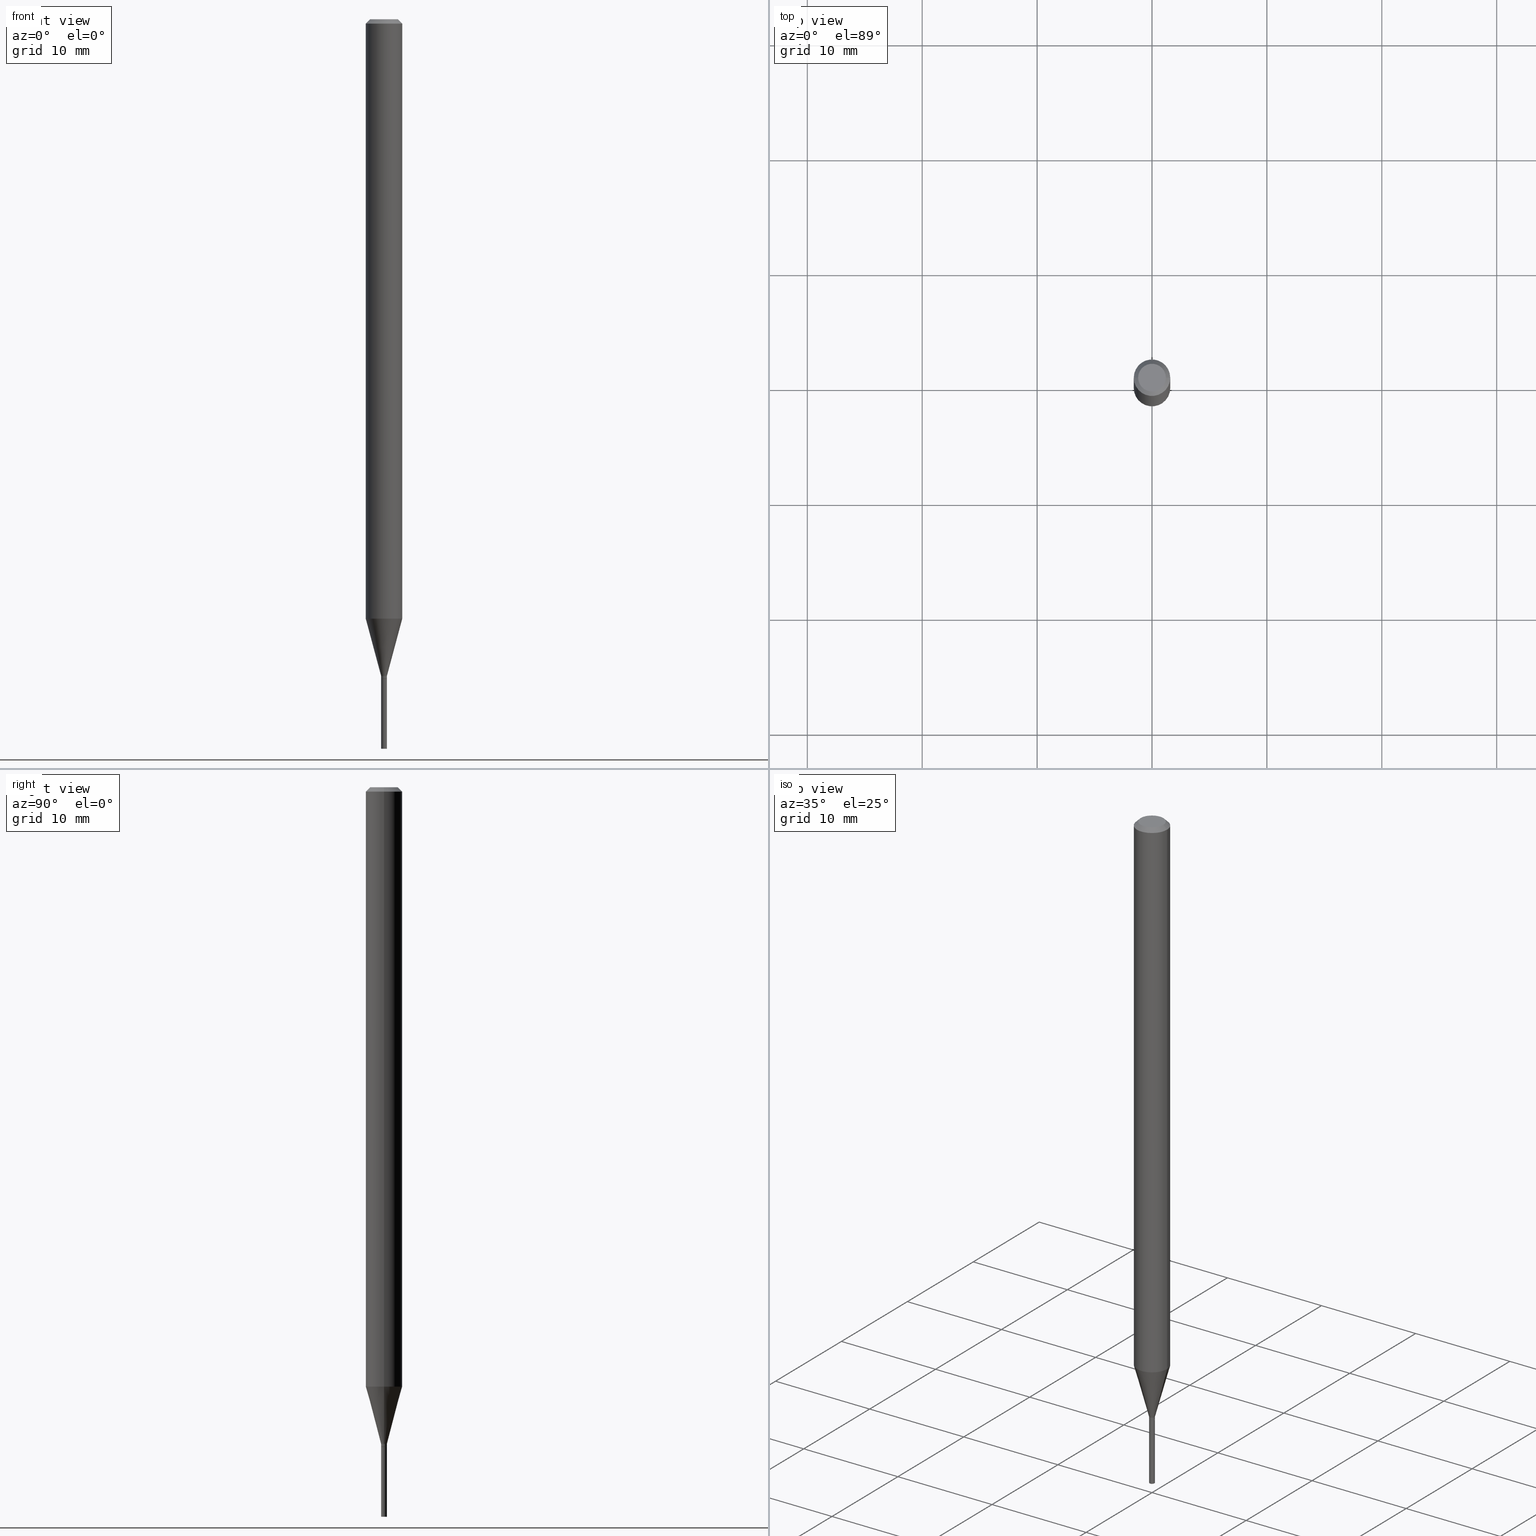
[diagram: canonical four-view strip — front | top / right | iso, engineering-drawing reading convention]
A machine part, canonical four-view strip (front | top / right | iso — engineering-drawing reading convention). The complete STEP part file that produces these views, byte-faithful:
ISO-10303-21;
HEADER;
FILE_DESCRIPTION (( 'STEP AP203' ),
    '1' );
FILE_NAME ('00640.STEP',
    '2024-03-19T22:14:25',
    ( '' ),
    ( '' ),
    'SwSTEP 2.0',
    'SolidWorks 2023',
    '' );
FILE_SCHEMA (( 'CONFIG_CONTROL_DESIGN' ));
ENDSEC;

DATA;
#1 = ORIENTED_EDGE ( 'NONE', *, *, #416, .F. ) ;
#2 = APPLICATION_CONTEXT ( 'configuration controlled 3d designs of mechanical parts and assemblies' ) ;
#3 = AXIS2_PLACEMENT_3D ( 'NONE', #405, #116, #7 ) ;
#4 = FACE_OUTER_BOUND ( 'NONE', #39, .T. ) ;
#5 = EDGE_CURVE ( 'NONE', #34, #466, #188, .T. ) ;
#6 = ORIENTED_EDGE ( 'NONE', *, *, #112, .T. ) ;
#7 = DIRECTION ( 'NONE',  ( 1.000000000000000000, 0.000000000000000000, 0.000000000000000000 ) ) ;
#8 = EDGE_LOOP ( 'NONE', ( #152, #95, #269, #148 ) ) ;
#9 = CALENDAR_DATE ( 2024, 19, 3 ) ;
#10 = CARTESIAN_POINT ( 'NONE',  ( 5.023157587683648864E-29, -7.171737760509410545E-15, -2.054067332602632856 ) ) ;
#11 = EDGE_CURVE ( 'NONE', #204, #113, #47, .T. ) ;
#12 = VECTOR ( 'NONE', #259, 39.37007874015748143 ) ;
#13 = CIRCLE ( 'NONE', #375, 0.04749999999999999362 ) ;
#14 = DATE_AND_TIME ( #194, #196 ) ;
#15 = CARTESIAN_POINT ( 'NONE',  ( -0.01000000000000000021, -8.238671312870676649E-15, -2.500000000000000000 ) ) ;
#16 = APPROVAL ( #82, 'UNSPECIFIED' ) ;
#17 = CARTESIAN_POINT ( 'NONE',  ( 0.009999999999999649794, -7.925662639173938591E-15, -2.250000000000000000 ) ) ;
#18 = CARTESIAN_POINT ( 'NONE',  ( -0.009999999999999649794, -7.256213644740208937E-15, -2.250000000000000000 ) ) ;
#19 = CIRCLE ( 'NONE', #283, 0.009999999999999649794 ) ;
#20 = DIRECTION ( 'NONE',  ( -2.445468806185136597E-29, 3.491481338843145583E-15, 1.000000000000000000 ) ) ;
#21 = EDGE_CURVE ( 'NONE', #277, #402, #164, .T. ) ;
#22 = DIRECTION ( 'NONE',  ( 1.000000000000000000, -6.982962677686285643E-15, 0.000000000000000000 ) ) ;
#23 = CYLINDRICAL_SURFACE ( 'NONE', #306, 0.01000000000000000021 ) ;
#24 = ORIENTED_EDGE ( 'NONE', *, *, #431, .F. ) ;
#25 = AXIS2_PLACEMENT_3D ( 'NONE', #257, #223, #382 ) ;
#26 = SECURITY_CLASSIFICATION ( '', '', #80 ) ;
#27 = CARTESIAN_POINT ( 'NONE',  ( 0.000000000000000000, 0.000000000000000000, 0.000000000000000000 ) ) ;
#28 = EDGE_LOOP ( 'NONE', ( #321, #249, #150, #65 ) ) ;
#29 = EDGE_CURVE ( 'NONE', #59, #277, #89, .T. ) ;
#30 = DIRECTION ( 'NONE',  ( -2.445468806185136877E-29, 3.491481338843145188E-15, 1.000000000000000000 ) ) ;
#31 = CARTESIAN_POINT ( 'NONE',  ( 5.502304813916557343E-29, -7.855833012397078448E-15, -2.250000000000000000 ) ) ;
#32 = VECTOR ( 'NONE', #124, 39.37007874015748143 ) ;
#33 = EDGE_CURVE ( 'NONE', #113, #68, #265, .T. ) ;
#34 = VERTEX_POINT ( 'NONE', #18 ) ;
#35 = DIRECTION ( 'NONE',  ( -2.445468806185136597E-29, 3.491481338843145583E-15, 1.000000000000000000 ) ) ;
#36 = ORIENTED_EDGE ( 'NONE', *, *, #298, .F. ) ;
#37 = ORIENTED_EDGE ( 'NONE', *, *, #274, .F. ) ;
#38 = DIRECTION ( 'NONE',  ( 1.000000000000000000, -6.982962677686285643E-15, 0.000000000000000000 ) ) ;
#39 = EDGE_LOOP ( 'NONE', ( #391, #314, #342, #36 ) ) ;
#40 = AXIS2_PLACEMENT_3D ( 'NONE', #385, #300, #312 ) ;
#41 = VECTOR ( 'NONE', #286, 39.37007874015748143 ) ;
#42 = PERSON_AND_ORGANIZATION_ROLE ( 'classification_officer' ) ;
#43 = VERTEX_POINT ( 'NONE', #200 ) ;
#44 = PERSON_AND_ORGANIZATION_ROLE ( 'creator' ) ;
#45 = FACE_OUTER_BOUND ( 'NONE', #302, .T. ) ;
#46 = PERSON_AND_ORGANIZATION_ROLE ( 'design_supplier' ) ;
#47 = LINE ( 'NONE', #201, #363 ) ;
#48 = EDGE_CURVE ( 'NONE', #43, #204, #445, .T. ) ;
#49 = VECTOR ( 'NONE', #30, 39.37007874015748143 ) ;
#50 = DIRECTION ( 'NONE',  ( -2.445468806185136597E-29, 3.491481338843145583E-15, 1.000000000000000000 ) ) ;
#51 = DIRECTION ( 'NONE',  ( -2.438088387897960049E-29, 3.491481338843145188E-15, 1.000000000000000000 ) ) ;
#52 = EDGE_CURVE ( 'NONE', #305, #132, #109, .T. ) ;
#53 = MANIFOLD_SOLID_BREP ( 'Body-Move/Copy2[1]', #235 ) ;
#54 = CARTESIAN_POINT ( 'NONE',  ( -0.01000000000000000021, -8.238671312870676649E-15, -2.260000000000000231 ) ) ;
#55 = CIRCLE ( 'NONE', #118, 0.06250000000000000000 ) ;
#56 = CONICAL_SURFACE ( 'NONE', #299, 0.009999999999999649794, 0.2617993877991497964 ) ;
#57 = CARTESIAN_POINT ( 'NONE',  ( 5.525536767575317208E-29, -7.889002085116087805E-15, -2.259500000000000508 ) ) ;
#58 = DIRECTION ( 'NONE',  ( 1.000000000000000000, -6.982962677686281699E-15, 0.000000000000000000 ) ) ;
#59 = VERTEX_POINT ( 'NONE', #157 ) ;
#60 = FACE_OUTER_BOUND ( 'NONE', #221, .T. ) ;
#61 = ORIENTED_EDGE ( 'NONE', *, *, #11, .F. ) ;
#62 = CC_DESIGN_APPROVAL ( #16, ( #387 ) ) ;
#63 = CARTESIAN_POINT ( 'NONE',  ( 6.982962677691792681E-17, 0.009999999999992108951, -2.260000000000000231 ) ) ;
#64 = FACE_OUTER_BOUND ( 'NONE', #240, .T. ) ;
#65 = ORIENTED_EDGE ( 'NONE', *, *, #33, .F. ) ;
#66 = EDGE_CURVE ( 'NONE', #393, #305, #337, .T. ) ;
#67 = DATE_AND_TIME ( #100, #250 ) ;
#68 = VERTEX_POINT ( 'NONE', #413 ) ;
#69 = AXIS2_PLACEMENT_3D ( 'NONE', #295, #193, #332 ) ;
#70 = ORIENTED_EDGE ( 'NONE', *, *, #440, .F. ) ;
#71 = CIRCLE ( 'NONE', #165, 0.04749999999999999362 ) ;
#72 =( NAMED_UNIT ( * ) PLANE_ANGLE_UNIT ( ) SI_UNIT ( $, .RADIAN. ) );
#73 = ORIENTED_EDGE ( 'NONE', *, *, #226, .F. ) ;
#74 = EDGE_CURVE ( 'NONE', #132, #305, #291, .T. ) ;
#75 = DIRECTION ( 'NONE',  ( -2.445468806185136597E-29, 3.491481338843145583E-15, 1.000000000000000000 ) ) ;
#76 = VERTEX_POINT ( 'NONE', #15 ) ;
#77 = DIRECTION ( 'NONE',  ( 1.000000000000000000, -6.982962677686267499E-15, 4.852736867747366768E-29 ) ) ;
#78 = ORIENTED_EDGE ( 'NONE', *, *, #66, .F. ) ;
#79 = ADVANCED_BREP_SHAPE_REPRESENTATION ( '00640', ( #53, #352, #3 ), #179 ) ;
#80 = SECURITY_CLASSIFICATION_LEVEL ( 'unclassified' ) ;
#81 = CARTESIAN_POINT ( 'NONE',  ( 6.198122052593289668E-29, -8.607766087339451973E-15, -2.500000000000000000 ) ) ;
#82 = APPROVAL_STATUS ( 'not_yet_approved' ) ;
#83 = ADVANCED_FACE ( 'NONE', ( #369 ), #128, .F. ) ;
#84 = CARTESIAN_POINT ( 'NONE',  ( 3.668203209277705088E-31, -5.237222008264718399E-17, -0.01499999999999999944 ) ) ;
#85 = COORDINATED_UNIVERSAL_TIME_OFFSET ( 5, 0, .BEHIND. ) ;
#86 = CARTESIAN_POINT ( 'NONE',  ( 5.526759501978408888E-29, -7.890747825785510097E-15, -2.260000000000000231 ) ) ;
#87 = AXIS2_PLACEMENT_3D ( 'NONE', #27, #340, #453 ) ;
#88 = CONICAL_SURFACE ( 'NONE', #456, 0.009499999999999999764, 0.7853981633974728149 ) ;
#89 = LINE ( 'NONE', #195, #317 ) ;
#90 = PLANE ( 'NONE',  #403 ) ;
#91 = CARTESIAN_POINT ( 'NONE',  ( -0.06250000000000000000, -3.167965780445966393E-15, -0.01499999999999999944 ) ) ;
#92 = CIRCLE ( 'NONE', #372, 0.01000000000000000021 ) ;
#93 = AXIS2_PLACEMENT_3D ( 'NONE', #167, #203, #344 ) ;
#94 = FACE_OUTER_BOUND ( 'NONE', #245, .T. ) ;
#95 = ORIENTED_EDGE ( 'NONE', *, *, #226, .T. ) ;
#96 = LINE ( 'NONE', #384, #49 ) ;
#97 = ADVANCED_FACE ( 'NONE', ( #297 ), #336, .T. ) ;
#98 = CYLINDRICAL_SURFACE ( 'NONE', #345, 0.009999999999999649794 ) ;
#99 = ORIENTED_EDGE ( 'NONE', *, *, #294, .T. ) ;
#100 = CALENDAR_DATE ( 2024, 19, 3 ) ;
#101 = AXIS2_PLACEMENT_3D ( 'NONE', #399, #327, #426 ) ;
#102 = FACE_OUTER_BOUND ( 'NONE', #276, .T. ) ;
#103 = ADVANCED_FACE ( 'NONE', ( #45 ), #90, .F. ) ;
#104 = LENGTH_MEASURE_WITH_UNIT ( LENGTH_MEASURE( 0.02539999999999999897 ), #211 );
#105 = ORIENTED_EDGE ( 'NONE', *, *, #383, .T. ) ;
#106 = SHAPE_DEFINITION_REPRESENTATION ( #127, #79 ) ;
#107 = VERTEX_POINT ( 'NONE', #262 ) ;
#108 = DIRECTION ( 'NONE',  ( 1.000000000000000000, -6.982962677686262766E-15, 0.000000000000000000 ) ) ;
#109 = CIRCLE ( 'NONE', #227, 0.01000000000000000021 ) ;
#110 = ORIENTED_EDGE ( 'NONE', *, *, #440, .T. ) ;
#111 = DIRECTION ( 'NONE',  ( -2.445468806185136597E-29, 3.491481338843145583E-15, 1.000000000000000000 ) ) ;
#112 = EDGE_CURVE ( 'NONE', #43, #107, #462, .T. ) ;
#113 = VERTEX_POINT ( 'NONE', #17 ) ;
#114 = LINE ( 'NONE', #361, #41 ) ;
#115 = ORIENTED_EDGE ( 'NONE', *, *, #274, .T. ) ;
#116 = DIRECTION ( 'NONE',  ( 0.000000000000000000, 0.000000000000000000, 1.000000000000000000 ) ) ;
#117 = DIRECTION ( 'NONE',  ( -2.438088387897960049E-29, 3.491481338843145188E-15, 1.000000000000000000 ) ) ;
#118 = AXIS2_PLACEMENT_3D ( 'NONE', #10, #448, #231 ) ;
#119 = APPROVAL_PERSON_ORGANIZATION ( #329, #309, #130 ) ;
#120 = CC_DESIGN_PERSON_AND_ORGANIZATION_ASSIGNMENT ( #258, #407, ( #233 ) ) ;
#121 = PERSON_AND_ORGANIZATION_ROLE ( 'design_owner' ) ;
#122 = DIRECTION ( 'NONE',  ( 1.000000000000000000, -6.982962677686265922E-15, 4.876176775795935793E-29 ) ) ;
#123 = DATE_AND_TIME ( #9, #339 ) ;
#124 = DIRECTION ( 'NONE',  ( -2.445468806185136877E-29, 3.491481338843145188E-15, 1.000000000000000000 ) ) ;
#125 = DIRECTION ( 'NONE',  ( 1.000000000000000000, -6.982962677686265922E-15, 4.876176775795935793E-29 ) ) ;
#126 = CIRCLE ( 'NONE', #101, 0.06250000000000000000 ) ;
#127 = PRODUCT_DEFINITION_SHAPE ( 'NONE', 'NONE',  #233 ) ;
#128 = PLANE ( 'NONE',  #141 ) ;
#129 = FACE_OUTER_BOUND ( 'NONE', #360, .T. ) ;
#130 = APPROVAL_ROLE ( '' ) ;
#131 = LINE ( 'NONE', #273, #171 ) ;
#132 = VERTEX_POINT ( 'NONE', #54 ) ;
#133 = AXIS2_PLACEMENT_3D ( 'NONE', #237, #137, #173 ) ;
#134 = EDGE_CURVE ( 'NONE', #68, #402, #338, .T. ) ;
#135 = CONICAL_SURFACE ( 'NONE', #450, 0.009999999999999649794, 0.2617993877991497964 ) ;
#136 = DIRECTION ( 'NONE',  ( 1.000000000000000000, -6.982962677686265922E-15, 4.876176775795935793E-29 ) ) ;
#137 = DIRECTION ( 'NONE',  ( -2.445468806185136597E-29, 3.491481338843145583E-15, 1.000000000000000000 ) ) ;
#138 = CARTESIAN_POINT ( 'NONE',  ( 3.668203209277705088E-31, -5.237222008264718399E-17, -0.01499999999999999944 ) ) ;
#139 = EDGE_CURVE ( 'NONE', #466, #68, #55, .T. ) ;
#140 = EDGE_LOOP ( 'NONE', ( #282, #105, #144, #78 ) ) ;
#141 = AXIS2_PLACEMENT_3D ( 'NONE', #161, #117, #125 ) ;
#142 = AXIS2_PLACEMENT_3D ( 'NONE', #252, #216, #392 ) ;
#143 = DIRECTION ( 'NONE',  ( -2.445468806185136597E-29, 3.491481338843145583E-15, 1.000000000000000000 ) ) ;
#144 = ORIENTED_EDGE ( 'NONE', *, *, #52, .F. ) ;
#145 = FACE_OUTER_BOUND ( 'NONE', #182, .T. ) ;
#146 = VERTEX_POINT ( 'NONE', #406 ) ;
#147 = DIRECTION ( 'NONE',  ( -0.7071067811865647812, 7.493145998870415691E-15, 0.7071067811865301422 ) ) ;
#148 = ORIENTED_EDGE ( 'NONE', *, *, #303, .F. ) ;
#149 = AXIS2_PLACEMENT_3D ( 'NONE', #389, #310, #58 ) ;
#150 = ORIENTED_EDGE ( 'NONE', *, *, #458, .F. ) ;
#151 = CARTESIAN_POINT ( 'NONE',  ( 0.01000000000000000021, -8.798532973884726663E-15, -2.500000000000000000 ) ) ;
#152 = ORIENTED_EDGE ( 'NONE', *, *, #404, .F. ) ;
#153 = COORDINATED_UNIVERSAL_TIME_OFFSET ( 5, 0, .BEHIND. ) ;
#154 = CARTESIAN_POINT ( 'NONE',  ( 6.113672015462842613E-29, -8.728703347107864943E-15, -2.500000000000000000 ) ) ;
#155 = APPROVAL ( #370, 'UNSPECIFIED' ) ;
#156 = PERSON_AND_ORGANIZATION ( #197, #264 ) ;
#157 = CARTESIAN_POINT ( 'NONE',  ( -0.04749999999999999362, 3.578768372314227269E-16, 9.466017379672966683E-16 ) ) ;
#158 = VECTOR ( 'NONE', #439, 39.37007874015748143 ) ;
#159 = LOCAL_TIME ( 18, 14, 25.00000000000000000, #153 ) ;
#160 = PERSON_AND_ORGANIZATION ( #197, #264 ) ;
#161 = CARTESIAN_POINT ( 'NONE',  ( 5.526759501978408888E-29, -7.890747825785508520E-15, -2.259999999999999787 ) ) ;
#162 = PLANE ( 'NONE',  #25 ) ;
#163 = CARTESIAN_POINT ( 'NONE',  ( 5.526759501978408888E-29, -7.890747825785510097E-15, -2.260000000000000231 ) ) ;
#164 = CIRCLE ( 'NONE', #380, 0.06250000000000000000 ) ;
#165 = AXIS2_PLACEMENT_3D ( 'NONE', #254, #111, #401 ) ;
#166 = DIRECTION ( 'NONE',  ( 1.000000000000000000, -6.982962677686235945E-15, 0.000000000000000000 ) ) ;
#167 = CARTESIAN_POINT ( 'NONE',  ( 5.502304813916557343E-29, -7.855833012397078448E-15, -2.250000000000000000 ) ) ;
#168 = CC_DESIGN_DATE_AND_TIME_ASSIGNMENT ( #14, #222, ( #26 ) ) ;
#169 = FACE_OUTER_BOUND ( 'NONE', #140, .T. ) ;
#170 = ORIENTED_EDGE ( 'NONE', *, *, #5, .F. ) ;
#171 = VECTOR ( 'NONE', #234, 39.37007874015748143 ) ;
#172 = EDGE_CURVE ( 'NONE', #76, #393, #92, .T. ) ;
#173 = DIRECTION ( 'NONE',  ( 1.000000000000000000, -6.982962677686266711E-15, 4.876176775795935793E-29 ) ) ;
#174 = ORIENTED_EDGE ( 'NONE', *, *, #66, .T. ) ;
#175 = PRODUCT_RELATED_PRODUCT_CATEGORY ( 'detail', '', ( #412 ) ) ;
#176 = FACE_OUTER_BOUND ( 'NONE', #362, .T. ) ;
#177 = CARTESIAN_POINT ( 'NONE',  ( 5.526759501978408888E-29, -7.890747825785508520E-15, -2.259999999999999787 ) ) ;
#178 = APPROVAL_DATE_TIME ( #67, #309 ) ;
#179 =( GEOMETRIC_REPRESENTATION_CONTEXT ( 3 ) GLOBAL_UNCERTAINTY_ASSIGNED_CONTEXT ( ( #307 ) ) GLOBAL_UNIT_ASSIGNED_CONTEXT ( ( #244, #72, #359 ) ) REPRESENTATION_CONTEXT ( 'NONE', 'WORKASPACE' ) );
#180 = ORIENTED_EDGE ( 'NONE', *, *, #21, .T. ) ;
#181 = CARTESIAN_POINT ( 'NONE',  ( 0.000000000000000000, 0.000000000000000000, 0.000000000000000000 ) ) ;
#182 = EDGE_LOOP ( 'NONE', ( #285, #191, #330, #400 ) ) ;
#183 = ADVANCED_FACE ( 'NONE', ( #378 ), #162, .F. ) ;
#184 = CARTESIAN_POINT ( 'NONE',  ( -2.314885022079666495E-44, 3.305042303429313746E-30, 9.466017379672990348E-16 ) ) ;
#185 = APPROVAL_STATUS ( 'not_yet_approved' ) ;
#186 = ORIENTED_EDGE ( 'NONE', *, *, #190, .F. ) ;
#187 = CARTESIAN_POINT ( 'NONE',  ( -0.009499999999999999764, -7.823246265888298548E-15, -2.259999999999999787 ) ) ;
#188 = LINE ( 'NONE', #328, #158 ) ;
#189 = COORDINATED_UNIVERSAL_TIME_OFFSET ( 5, 0, .BEHIND. ) ;
#190 = EDGE_CURVE ( 'NONE', #393, #76, #355, .T. ) ;
#191 = ORIENTED_EDGE ( 'NONE', *, *, #431, .T. ) ;
#192 = COORDINATED_UNIVERSAL_TIME_OFFSET ( 5, 0, .BEHIND. ) ;
#193 = DIRECTION ( 'NONE',  ( -2.445468806185136597E-29, 3.491481338843145583E-15, 1.000000000000000000 ) ) ;
#194 = CALENDAR_DATE ( 2024, 19, 3 ) ;
#195 = CARTESIAN_POINT ( 'NONE',  ( -0.06250000000000000000, 3.840629472727444916E-16, -0.01499999999999999944 ) ) ;
#196 = LOCAL_TIME ( 18, 14, 25.00000000000000000, #189 ) ;
#197 = PERSON ( 'UNSPECIFIED', 'UNSPECIFIED', 'UNSPECIFIED', ('UNSPECIFIED'), ('UNSPECIFIED'), ('UNSPECIFIED') ) ;
#198 = DIRECTION ( 'NONE',  ( 1.000000000000000000, -6.982962677686266711E-15, 0.000000000000000000 ) ) ;
#199 = ADVANCED_FACE ( 'NONE', ( #176 ), #452, .T. ) ;
#200 = CARTESIAN_POINT ( 'NONE',  ( 0.009499999999999999764, -7.957085971223528811E-15, -2.259999999999999787 ) ) ;
#201 = CARTESIAN_POINT ( 'NONE',  ( 0.009999999999999649794, -6.982962677686021671E-17, 4.876176775795764309E-31 ) ) ;
#202 = CARTESIAN_POINT ( 'NONE',  ( 5.502304813916557343E-29, -7.855833012397078448E-15, -2.250000000000000000 ) ) ;
#203 = DIRECTION ( 'NONE',  ( -2.445468806185136597E-29, 3.491481338843145583E-15, 1.000000000000000000 ) ) ;
#204 = VERTEX_POINT ( 'NONE', #418 ) ;
#205 = DIRECTION ( 'NONE',  ( -1.000000000000000000, 6.982962677686266711E-15, 0.000000000000000000 ) ) ;
#206 = ORIENTED_EDGE ( 'NONE', *, *, #74, .T. ) ;
#207 = CIRCLE ( 'NONE', #93, 0.009999999999999649794 ) ;
#208 = CARTESIAN_POINT ( 'NONE',  ( 0.04749999999999999362, -4.035134999187561860E-16, 9.466017379673015986E-16 ) ) ;
#209 = DIRECTION ( 'NONE',  ( -2.445468806185136597E-29, 3.491481338843145583E-15, 1.000000000000000000 ) ) ;
#210 = VERTEX_POINT ( 'NONE', #208 ) ;
#211 =( LENGTH_UNIT ( ) NAMED_UNIT ( * ) SI_UNIT ( $, .METRE. ) );
#212 = ADVANCED_FACE ( 'NONE', ( #94 ), #421, .T. ) ;
#213 = ORIENTED_EDGE ( 'NONE', *, *, #172, .F. ) ;
#214 = DIRECTION ( 'NONE',  ( -1.000000000000000000, 6.982962677686266711E-15, 0.000000000000000000 ) ) ;
#215 = ORIENTED_EDGE ( 'NONE', *, *, #52, .T. ) ;
#216 = DIRECTION ( 'NONE',  ( -2.445468806185136597E-29, 3.491481338843145583E-15, 1.000000000000000000 ) ) ;
#217 = ORIENTED_EDGE ( 'NONE', *, *, #383, .F. ) ;
#218 = DATE_AND_TIME ( #373, #159 ) ;
#219 = AXIS2_PLACEMENT_3D ( 'NONE', #86, #379, #414 ) ;
#220 = AXIS2_PLACEMENT_3D ( 'NONE', #432, #35, #108 ) ;
#221 = EDGE_LOOP ( 'NONE', ( #24, #70, #280, #180 ) ) ;
#222 = DATE_TIME_ROLE ( 'classification_date' ) ;
#223 = DIRECTION ( 'NONE',  ( 2.438088387897960049E-29, -3.491481338843145188E-15, -1.000000000000000000 ) ) ;
#224 = APPROVAL_DATE_TIME ( #218, #16 ) ;
#225 = CARTESIAN_POINT ( 'NONE',  ( 0.009499999999999999764, -7.957085971223528811E-15, -2.259999999999999787 ) ) ;
#226 = EDGE_CURVE ( 'NONE', #107, #43, #454, .T. ) ;
#227 = AXIS2_PLACEMENT_3D ( 'NONE', #163, #335, #293 ) ;
#228 = DIRECTION ( 'NONE',  ( -2.445468806185136597E-29, 3.491481338843145583E-15, 1.000000000000000000 ) ) ;
#229 = CONICAL_SURFACE ( 'NONE', #435, 0.06250000000000000000, 0.7853981633974168597 ) ;
#230 = CC_DESIGN_DATE_AND_TIME_ASSIGNMENT ( #123, #288, ( #233 ) ) ;
#231 = DIRECTION ( 'NONE',  ( 1.000000000000000000, -6.982962677686262766E-15, 0.000000000000000000 ) ) ;
#232 = DIRECTION ( 'NONE',  ( 0.7071067811865647812, -2.468850131082438104E-15, 0.7071067811865301422 ) ) ;
#233 = PRODUCT_DEFINITION ( 'UNKNOWN', '', #387, #324 ) ;
#234 = DIRECTION ( 'NONE',  ( -2.445468806185136877E-29, 3.491481338843145188E-15, 1.000000000000000000 ) ) ;
#235 = CLOSED_SHELL ( 'NONE', ( #266, #103, #199, #284 ) ) ;
#236 = APPROVAL_PERSON_ORGANIZATION ( #256, #155, #290 ) ;
#237 = CARTESIAN_POINT ( 'NONE',  ( 0.000000000000000000, 0.000000000000000000, 0.000000000000000000 ) ) ;
#238 = DIRECTION ( 'NONE',  ( -2.445468806185136597E-29, 3.491481338843145583E-15, 1.000000000000000000 ) ) ;
#239 = CARTESIAN_POINT ( 'NONE',  ( 0.000000000000000000, 0.000000000000000000, 0.000000000000000000 ) ) ;
#240 = EDGE_LOOP ( 'NONE', ( #215, #206 ) ) ;
#241 = CONICAL_SURFACE ( 'NONE', #40, 0.009499999999999999764, 0.7853981633974728149 ) ;
#242 = CC_DESIGN_SECURITY_CLASSIFICATION ( #26, ( #387 ) ) ;
#243 = DIRECTION ( 'NONE',  ( -2.445468806185136597E-29, 3.491481338843145583E-15, 1.000000000000000000 ) ) ;
#244 =( CONVERSION_BASED_UNIT ( 'INCH', #104 ) LENGTH_UNIT ( ) NAMED_UNIT ( #311 ) );
#245 = EDGE_LOOP ( 'NONE', ( #433, #251, #253, #437 ) ) ;
#246 = COORDINATED_UNIVERSAL_TIME_OFFSET ( 5, 0, .BEHIND. ) ;
#247 = CC_DESIGN_PERSON_AND_ORGANIZATION_ASSIGNMENT ( #331, #44, ( #387 ) ) ;
#248 = APPLICATION_PROTOCOL_DEFINITION ( 'international standard', 'config_control_design', 1994, #2 ) ;
#249 = ORIENTED_EDGE ( 'NONE', *, *, #5, .T. ) ;
#250 = LOCAL_TIME ( 18, 14, 25.00000000000000000, #246 ) ;
#251 = ORIENTED_EDGE ( 'NONE', *, *, #139, .T. ) ;
#252 = CARTESIAN_POINT ( 'NONE',  ( 5.502304813916557343E-29, -7.855833012397078448E-15, -2.250000000000000000 ) ) ;
#253 = ORIENTED_EDGE ( 'NONE', *, *, #134, .T. ) ;
#254 = CARTESIAN_POINT ( 'NONE',  ( -2.314885022079666495E-44, 3.305042303429313746E-30, 9.466017379672990348E-16 ) ) ;
#255 = EDGE_LOOP ( 'NONE', ( #110, #354 ) ) ;
#256 = PERSON_AND_ORGANIZATION ( #197, #264 ) ;
#257 = CARTESIAN_POINT ( 'NONE',  ( 3.316907271900976096E-16, 0.04749999999999999362, 3.074555053886001210E-16 ) ) ;
#258 = PERSON_AND_ORGANIZATION ( #197, #264 ) ;
#259 = DIRECTION ( 'NONE',  ( 0.2588190451025211281, 1.565188264969623940E-15, 0.9659258262890682012 ) ) ;
#260 = CALENDAR_DATE ( 2024, 19, 3 ) ;
#261 = ADVANCED_FACE ( 'NONE', ( #129 ), #98, .T. ) ;
#262 = CARTESIAN_POINT ( 'NONE',  ( -0.009499999999999999764, -7.820597038714189713E-15, -2.259999999999999787 ) ) ;
#263 = DIRECTION ( 'NONE',  ( -0.7071067811865252573, 2.468850131082023558E-15, -0.7071067811865697772 ) ) ;
#264 = ORGANIZATION ( 'UNSPECIFIED', 'UNSPECIFIED', '' ) ;
#265 = LINE ( 'NONE', #442, #12 ) ;
#266 = ADVANCED_FACE ( 'NONE', ( #169 ), #23, .T. ) ;
#267 = CARTESIAN_POINT ( 'NONE',  ( 5.525536767575317208E-29, -7.889002085116087805E-15, -2.259500000000000508 ) ) ;
#268 = FACE_OUTER_BOUND ( 'NONE', #8, .T. ) ;
#269 = ORIENTED_EDGE ( 'NONE', *, *, #48, .T. ) ;
#270 = VECTOR ( 'NONE', #376, 39.37007874015748143 ) ;
#271 = AXIS2_PLACEMENT_3D ( 'NONE', #138, #275, #205 ) ;
#272 = DIRECTION ( 'NONE',  ( 1.000000000000000000, -6.982962677686285643E-15, 0.000000000000000000 ) ) ;
#273 = CARTESIAN_POINT ( 'NONE',  ( -0.06250000000000000000, 4.440892098500626162E-16, -3.074334431409316114E-30 ) ) ;
#274 = EDGE_CURVE ( 'NONE', #204, #146, #325, .T. ) ;
#275 = DIRECTION ( 'NONE',  ( 2.445468806185136597E-29, -3.491481338843145583E-15, -1.000000000000000000 ) ) ;
#276 = EDGE_LOOP ( 'NONE', ( #170, #390, #357, #423 ) ) ;
#277 = VERTEX_POINT ( 'NONE', #91 ) ;
#278 = ADVANCED_FACE ( 'NONE', ( #459 ), #241, .T. ) ;
#279 = FACE_OUTER_BOUND ( 'NONE', #28, .T. ) ;
#280 = ORIENTED_EDGE ( 'NONE', *, *, #29, .T. ) ;
#281 = LINE ( 'NONE', #461, #364 ) ;
#282 = ORIENTED_EDGE ( 'NONE', *, *, #190, .T. ) ;
#283 = AXIS2_PLACEMENT_3D ( 'NONE', #57, #455, #272 ) ;
#284 = ADVANCED_FACE ( 'NONE', ( #64 ), #424, .F. ) ;
#285 = ORIENTED_EDGE ( 'NONE', *, *, #464, .F. ) ;
#286 = DIRECTION ( 'NONE',  ( -2.445468806185136877E-29, 3.491481338843145188E-15, 1.000000000000000000 ) ) ;
#287 = EDGE_LOOP ( 'NONE', ( #463, #73 ) ) ;
#288 = DATE_TIME_ROLE ( 'creation_date' ) ;
#289 = DIRECTION ( 'NONE',  ( 1.000000000000000000, -6.982962677686235945E-15, 0.000000000000000000 ) ) ;
#290 = APPROVAL_ROLE ( '' ) ;
#291 = CIRCLE ( 'NONE', #219, 0.01000000000000000021 ) ;
#292 = LOCAL_TIME ( 18, 14, 25.00000000000000000, #85 ) ;
#293 = DIRECTION ( 'NONE',  ( 1.000000000000000000, -6.982962677686235945E-15, 0.000000000000000000 ) ) ;
#294 = EDGE_CURVE ( 'NONE', #466, #277, #131, .T. ) ;
#295 = CARTESIAN_POINT ( 'NONE',  ( 0.000000000000000000, 0.000000000000000000, 0.000000000000000000 ) ) ;
#296 = DIRECTION ( 'NONE',  ( -2.445468806185136877E-29, 3.491481338843145188E-15, 1.000000000000000000 ) ) ;
#297 = FACE_OUTER_BOUND ( 'NONE', #457, .T. ) ;
#298 = EDGE_CURVE ( 'NONE', #34, #113, #207, .T. ) ;
#299 = AXIS2_PLACEMENT_3D ( 'NONE', #202, #243, #22 ) ;
#300 = DIRECTION ( 'NONE',  ( -2.445468806185136597E-29, 3.491481338843145583E-15, 1.000000000000000000 ) ) ;
#301 = CARTESIAN_POINT ( 'NONE',  ( 0.000000000000000000, 0.000000000000000000, 0.000000000000000000 ) ) ;
#302 = EDGE_LOOP ( 'NONE', ( #186, #213 ) ) ;
#303 = EDGE_CURVE ( 'NONE', #146, #204, #19, .T. ) ;
#304 = DIRECTION ( 'NONE',  ( -1.000000000000000000, 6.982962677686265922E-15, -4.876176775795935793E-29 ) ) ;
#305 = VERTEX_POINT ( 'NONE', #420 ) ;
#306 = AXIS2_PLACEMENT_3D ( 'NONE', #301, #341, #136 ) ;
#307 = UNCERTAINTY_MEASURE_WITH_UNIT (LENGTH_MEASURE( 1.000000000000000082E-05 ), #244, 'distance_accuracy_value', 'NONE');
#308 = CC_DESIGN_APPROVAL ( #309, ( #26 ) ) ;
#309 = APPROVAL ( #185, 'UNSPECIFIED' ) ;
#310 = DIRECTION ( 'NONE',  ( -2.445468806185136597E-29, 3.491481338843145583E-15, 1.000000000000000000 ) ) ;
#311 = DIMENSIONAL_EXPONENTS ( 1.000000000000000000, 0.000000000000000000, 0.000000000000000000, 0.000000000000000000, 0.000000000000000000, 0.000000000000000000, 0.000000000000000000 ) ;
#312 = DIRECTION ( 'NONE',  ( 1.000000000000000000, -6.982962677686281699E-15, 0.000000000000000000 ) ) ;
#313 = EDGE_CURVE ( 'NONE', #146, #34, #96, .T. ) ;
#314 = ORIENTED_EDGE ( 'NONE', *, *, #303, .T. ) ;
#315 = LINE ( 'NONE', #187, #425 ) ;
#316 = CC_DESIGN_PERSON_AND_ORGANIZATION_ASSIGNMENT ( #160, #121, ( #412 ) ) ;
#317 = VECTOR ( 'NONE', #263, 39.37007874015748143 ) ;
#318 = APPROVAL_PERSON_ORGANIZATION ( #367, #16, #441 ) ;
#319 = ORIENTED_EDGE ( 'NONE', *, *, #313, .T. ) ;
#320 = CARTESIAN_POINT ( 'NONE',  ( 0.06250000000000000000, -4.888073874380388472E-16, -0.01499999999999999944 ) ) ;
#321 = ORIENTED_EDGE ( 'NONE', *, *, #377, .T. ) ;
#322 = DIRECTION ( 'NONE',  ( 2.445468806185136597E-29, -3.491481338843145583E-15, -1.000000000000000000 ) ) ;
#323 = ORIENTED_EDGE ( 'NONE', *, *, #134, .F. ) ;
#324 = DESIGN_CONTEXT ( 'detailed design', #428, 'design' ) ;
#325 = CIRCLE ( 'NONE', #386, 0.009999999999999649794 ) ;
#326 = CONICAL_SURFACE ( 'NONE', #271, 0.06250000000000000000, 0.7853981633974168597 ) ;
#327 = DIRECTION ( 'NONE',  ( -2.445468806185136597E-29, 3.491481338843145583E-15, 1.000000000000000000 ) ) ;
#328 = CARTESIAN_POINT ( 'NONE',  ( -0.009999999999999649794, -7.784778738821069944E-15, -2.250000000000000000 ) ) ;
#329 = PERSON_AND_ORGANIZATION ( #197, #264 ) ;
#330 = ORIENTED_EDGE ( 'NONE', *, *, #416, .T. ) ;
#331 = PERSON_AND_ORGANIZATION ( #197, #264 ) ;
#332 = DIRECTION ( 'NONE',  ( 1.000000000000000000, -6.982962677686266711E-15, 4.876176775795935793E-29 ) ) ;
#333 = CC_DESIGN_PERSON_AND_ORGANIZATION_ASSIGNMENT ( #446, #46, ( #387 ) ) ;
#334 = DATE_AND_TIME ( #260, #292 ) ;
#335 = DIRECTION ( 'NONE',  ( -2.445468806185136597E-29, 3.491481338843145583E-15, 1.000000000000000000 ) ) ;
#336 = CYLINDRICAL_SURFACE ( 'NONE', #69, 0.06250000000000000000 ) ;
#337 = LINE ( 'NONE', #447, #32 ) ;
#338 = LINE ( 'NONE', #408, #270 ) ;
#339 = LOCAL_TIME ( 18, 14, 25.00000000000000000, #192 ) ;
#340 = DIRECTION ( 'NONE',  ( -2.445468806185136597E-29, 3.491481338843145583E-15, 1.000000000000000000 ) ) ;
#341 = DIRECTION ( 'NONE',  ( -2.445468806185136597E-29, 3.491481338843145583E-15, 1.000000000000000000 ) ) ;
#342 = ORIENTED_EDGE ( 'NONE', *, *, #11, .T. ) ;
#343 = ADVANCED_FACE ( 'NONE', ( #60 ), #326, .T. ) ;
#344 = DIRECTION ( 'NONE',  ( 1.000000000000000000, -6.982962677686285643E-15, 0.000000000000000000 ) ) ;
#345 = AXIS2_PLACEMENT_3D ( 'NONE', #239, #238, #415 ) ;
#346 = CIRCLE ( 'NONE', #142, 0.009999999999999649794 ) ;
#347 = DIRECTION ( 'NONE',  ( 1.000000000000000000, -6.982962677686285643E-15, 0.000000000000000000 ) ) ;
#348 = ORIENTED_EDGE ( 'NONE', *, *, #404, .T. ) ;
#349 = ADVANCED_FACE ( 'NONE', ( #102 ), #56, .T. ) ;
#350 = CARTESIAN_POINT ( 'NONE',  ( -0.06250000000000000000, -6.727648550659347140E-15, -2.054067332602632856 ) ) ;
#351 = ORIENTED_EDGE ( 'NONE', *, *, #48, .F. ) ;
#352 = MANIFOLD_SOLID_BREP ( 'Body-Move/Copy2[2]', #394 ) ;
#353 = DIRECTION ( 'NONE',  ( 1.000000000000000000, -6.982962677686281699E-15, 0.000000000000000000 ) ) ;
#354 = ORIENTED_EDGE ( 'NONE', *, *, #464, .T. ) ;
#355 = CIRCLE ( 'NONE', #417, 0.01000000000000000021 ) ;
#356 = DIRECTION ( 'NONE',  ( -2.445468806185136597E-29, 3.491481338843145583E-15, 1.000000000000000000 ) ) ;
#357 = ORIENTED_EDGE ( 'NONE', *, *, #33, .T. ) ;
#358 = ADVANCED_FACE ( 'NONE', ( #268 ), #88, .T. ) ;
#359 =( NAMED_UNIT ( * ) SI_UNIT ( $, .STERADIAN. ) SOLID_ANGLE_UNIT ( ) );
#360 = EDGE_LOOP ( 'NONE', ( #115, #319, #366, #61 ) ) ;
#361 = CARTESIAN_POINT ( 'NONE',  ( -0.01000000000000000021, 7.105427357601002007E-17, -4.918935090254906272E-31 ) ) ;
#362 = EDGE_LOOP ( 'NONE', ( #217, #427, #174, #419 ) ) ;
#363 = VECTOR ( 'NONE', #296, 39.37007874015748143 ) ;
#364 = VECTOR ( 'NONE', #438, 39.37007874015748143 ) ;
#365 = APPROVAL_DATE_TIME ( #334, #155 ) ;
#366 = ORIENTED_EDGE ( 'NONE', *, *, #377, .F. ) ;
#367 = PERSON_AND_ORGANIZATION ( #197, #264 ) ;
#368 = ADVANCED_FACE ( 'NONE', ( #279 ), #135, .T. ) ;
#369 = FACE_OUTER_BOUND ( 'NONE', #287, .T. ) ;
#370 = APPROVAL_STATUS ( 'not_yet_approved' ) ;
#371 = DIRECTION ( 'NONE',  ( -2.445468806185136597E-29, 3.491481338843145583E-15, 1.000000000000000000 ) ) ;
#372 = AXIS2_PLACEMENT_3D ( 'NONE', #154, #371, #289 ) ;
#373 = CALENDAR_DATE ( 2024, 19, 3 ) ;
#374 = VECTOR ( 'NONE', #232, 39.37007874015748854 ) ;
#375 = AXIS2_PLACEMENT_3D ( 'NONE', #184, #143, #77 ) ;
#376 = DIRECTION ( 'NONE',  ( -2.445468806185136877E-29, 3.491481338843145188E-15, 1.000000000000000000 ) ) ;
#377 = EDGE_CURVE ( 'NONE', #113, #34, #346, .T. ) ;
#378 = FACE_OUTER_BOUND ( 'NONE', #255, .T. ) ;
#379 = DIRECTION ( 'NONE',  ( -2.445468806185136597E-29, 3.491481338843145583E-15, 1.000000000000000000 ) ) ;
#380 = AXIS2_PLACEMENT_3D ( 'NONE', #84, #50, #198 ) ;
#381 = CARTESIAN_POINT ( 'NONE',  ( 6.113672015462842613E-29, -8.728703347107864943E-15, -2.500000000000000000 ) ) ;
#382 = DIRECTION ( 'NONE',  ( -1.000000000000000000, 6.982962677686265922E-15, -4.876176775795935793E-29 ) ) ;
#383 = EDGE_CURVE ( 'NONE', #76, #132, #114, .T. ) ;
#384 = CARTESIAN_POINT ( 'NONE',  ( -0.009999999999999649794, 7.105427357600753022E-17, -4.918935090254733737E-31 ) ) ;
#385 = CARTESIAN_POINT ( 'NONE',  ( 5.526759501978408888E-29, -7.890747825785508520E-15, -2.259999999999999787 ) ) ;
#386 = AXIS2_PLACEMENT_3D ( 'NONE', #267, #209, #347 ) ;
#387 = PRODUCT_DEFINITION_FORMATION_WITH_SPECIFIED_SOURCE ( 'ANY', '', #412, .NOT_KNOWN. ) ;
#388 = ADVANCED_FACE ( 'NONE', ( #4 ), #436, .T. ) ;
#389 = CARTESIAN_POINT ( 'NONE',  ( 5.526759501978408888E-29, -7.890747825785508520E-15, -2.259999999999999787 ) ) ;
#390 = ORIENTED_EDGE ( 'NONE', *, *, #298, .T. ) ;
#391 = ORIENTED_EDGE ( 'NONE', *, *, #313, .F. ) ;
#392 = DIRECTION ( 'NONE',  ( 1.000000000000000000, -6.982962677686285643E-15, 0.000000000000000000 ) ) ;
#393 = VERTEX_POINT ( 'NONE', #151 ) ;
#394 = CLOSED_SHELL ( 'NONE', ( #261, #278, #397, #97, #368, #349, #212, #343, #183, #83, #358, #388 ) ) ;
#395 = CIRCLE ( 'NONE', #220, 0.06250000000000000000 ) ;
#396 = CARTESIAN_POINT ( 'NONE',  ( 3.668203209277705088E-31, -5.237222008264718399E-17, -0.01499999999999999944 ) ) ;
#397 = ADVANCED_FACE ( 'NONE', ( #145 ), #229, .T. ) ;
#398 = EDGE_LOOP ( 'NONE', ( #6, #348, #37, #351 ) ) ;
#399 = CARTESIAN_POINT ( 'NONE',  ( 3.668203209277705088E-31, -5.237222008264718399E-17, -0.01499999999999999944 ) ) ;
#400 = ORIENTED_EDGE ( 'NONE', *, *, #29, .F. ) ;
#401 = DIRECTION ( 'NONE',  ( 1.000000000000000000, -6.982962677686267499E-15, 4.852736867747366768E-29 ) ) ;
#402 = VERTEX_POINT ( 'NONE', #320 ) ;
#403 = AXIS2_PLACEMENT_3D ( 'NONE', #81, #51, #122 ) ;
#404 = EDGE_CURVE ( 'NONE', #107, #146, #315, .T. ) ;
#405 = CARTESIAN_POINT ( 'NONE',  ( 0.000000000000000000, 0.000000000000000000, 0.000000000000000000 ) ) ;
#406 = CARTESIAN_POINT ( 'NONE',  ( -0.009999999999999649794, -7.817947811540080879E-15, -2.259500000000000508 ) ) ;
#407 = PERSON_AND_ORGANIZATION_ROLE ( 'creator' ) ;
#408 = CARTESIAN_POINT ( 'NONE',  ( 0.06250000000000000000, -4.364351673553916694E-16, 3.047610484872459871E-30 ) ) ;
#409 = MECHANICAL_CONTEXT ( 'NONE', #2, 'mechanical' ) ;
#410 = CARTESIAN_POINT ( 'NONE',  ( 5.526759501978408888E-29, -7.890747825785508520E-15, -2.259999999999999787 ) ) ;
#411 = AXIS2_PLACEMENT_3D ( 'NONE', #410, #228, #451 ) ;
#412 = PRODUCT ( '00640', '00640', '', ( #409 ) ) ;
#413 = CARTESIAN_POINT ( 'NONE',  ( 0.06250000000000000000, -7.608172927864802215E-15, -2.054067332602632856 ) ) ;
#414 = DIRECTION ( 'NONE',  ( 1.000000000000000000, -6.982962677686235945E-15, 0.000000000000000000 ) ) ;
#415 = DIRECTION ( 'NONE',  ( 1.000000000000000000, -6.982962677686265922E-15, 4.876176775795935232E-29 ) ) ;
#416 = EDGE_CURVE ( 'NONE', #402, #277, #126, .T. ) ;
#417 = AXIS2_PLACEMENT_3D ( 'NONE', #381, #20, #166 ) ;
#418 = CARTESIAN_POINT ( 'NONE',  ( 0.009999999999999649794, -7.958831711892947948E-15, -2.259500000000000508 ) ) ;
#419 = ORIENTED_EDGE ( 'NONE', *, *, #74, .F. ) ;
#420 = CARTESIAN_POINT ( 'NONE',  ( 0.01000000000000000021, -7.960577452562371818E-15, -2.260000000000000231 ) ) ;
#421 = CYLINDRICAL_SURFACE ( 'NONE', #133, 0.06250000000000000000 ) ;
#422 = CC_DESIGN_PERSON_AND_ORGANIZATION_ASSIGNMENT ( #156, #42, ( #26 ) ) ;
#423 = ORIENTED_EDGE ( 'NONE', *, *, #139, .F. ) ;
#424 = PLANE ( 'NONE',  #449 ) ;
#425 = VECTOR ( 'NONE', #147, 39.37007874015748854 ) ;
#426 = DIRECTION ( 'NONE',  ( 1.000000000000000000, -6.982962677686266711E-15, 0.000000000000000000 ) ) ;
#427 = ORIENTED_EDGE ( 'NONE', *, *, #172, .T. ) ;
#428 = APPLICATION_CONTEXT ( 'configuration controlled 3d designs of mechanical parts and assemblies' ) ;
#429 = DIRECTION ( 'NONE',  ( 1.000000000000000000, -6.982962677686265922E-15, 4.876176775795935232E-29 ) ) ;
#430 = ORIENTED_EDGE ( 'NONE', *, *, #458, .T. ) ;
#431 = EDGE_CURVE ( 'NONE', #210, #402, #281, .T. ) ;
#432 = CARTESIAN_POINT ( 'NONE',  ( 5.023157587683648864E-29, -7.171737760509410545E-15, -2.054067332602632856 ) ) ;
#433 = ORIENTED_EDGE ( 'NONE', *, *, #294, .F. ) ;
#434 = CC_DESIGN_APPROVAL ( #155, ( #233 ) ) ;
#435 = AXIS2_PLACEMENT_3D ( 'NONE', #396, #322, #214 ) ;
#436 = CYLINDRICAL_SURFACE ( 'NONE', #443, 0.009999999999999649794 ) ;
#437 = ORIENTED_EDGE ( 'NONE', *, *, #21, .F. ) ;
#438 = DIRECTION ( 'NONE',  ( 0.7071067811865252573, -7.319954787623181892E-15, -0.7071067811865697772 ) ) ;
#439 = DIRECTION ( 'NONE',  ( -0.2588190451025211281, 5.211531920934548675E-15, 0.9659258262890682012 ) ) ;
#440 = EDGE_CURVE ( 'NONE', #59, #210, #71, .T. ) ;
#441 = APPROVAL_ROLE ( '' ) ;
#442 = CARTESIAN_POINT ( 'NONE',  ( 0.009999999999999649794, -7.925662639173938591E-15, -2.250000000000000000 ) ) ;
#443 = AXIS2_PLACEMENT_3D ( 'NONE', #181, #465, #429 ) ;
#444 = APPLICATION_PROTOCOL_DEFINITION ( 'international standard', 'config_control_design', 1994, #428 ) ;
#445 = LINE ( 'NONE', #225, #374 ) ;
#446 = PERSON_AND_ORGANIZATION ( #197, #264 ) ;
#447 = CARTESIAN_POINT ( 'NONE',  ( 0.01000000000000000021, -6.982962677686265724E-17, 4.876176775795935968E-31 ) ) ;
#448 = DIRECTION ( 'NONE',  ( -2.445468806185136597E-29, 3.491481338843145583E-15, 1.000000000000000000 ) ) ;
#449 = AXIS2_PLACEMENT_3D ( 'NONE', #63, #460, #304 ) ;
#450 = AXIS2_PLACEMENT_3D ( 'NONE', #31, #356, #38 ) ;
#451 = DIRECTION ( 'NONE',  ( 1.000000000000000000, -6.982962677686281699E-15, 0.000000000000000000 ) ) ;
#452 = CYLINDRICAL_SURFACE ( 'NONE', #87, 0.01000000000000000021 ) ;
#453 = DIRECTION ( 'NONE',  ( 1.000000000000000000, -6.982962677686265922E-15, 4.876176775795935793E-29 ) ) ;
#454 = CIRCLE ( 'NONE', #149, 0.009499999999999999764 ) ;
#455 = DIRECTION ( 'NONE',  ( -2.445468806185136597E-29, 3.491481338843145583E-15, 1.000000000000000000 ) ) ;
#456 = AXIS2_PLACEMENT_3D ( 'NONE', #177, #75, #353 ) ;
#457 = EDGE_LOOP ( 'NONE', ( #430, #99, #1, #323 ) ) ;
#458 = EDGE_CURVE ( 'NONE', #68, #466, #395, .T. ) ;
#459 = FACE_OUTER_BOUND ( 'NONE', #398, .T. ) ;
#460 = DIRECTION ( 'NONE',  ( 2.438088387897960049E-29, -3.491481338843145188E-15, -1.000000000000000000 ) ) ;
#461 = CARTESIAN_POINT ( 'NONE',  ( 0.06250000000000000000, -4.811533449433679005E-16, -0.01499999999999999944 ) ) ;
#462 = CIRCLE ( 'NONE', #411, 0.009499999999999999764 ) ;
#463 = ORIENTED_EDGE ( 'NONE', *, *, #112, .F. ) ;
#464 = EDGE_CURVE ( 'NONE', #210, #59, #13, .T. ) ;
#465 = DIRECTION ( 'NONE',  ( -2.445468806185136597E-29, 3.491481338843145583E-15, 1.000000000000000000 ) ) ;
#466 = VERTEX_POINT ( 'NONE', #350 ) ;
ENDSEC;
END-ISO-10303-21;
